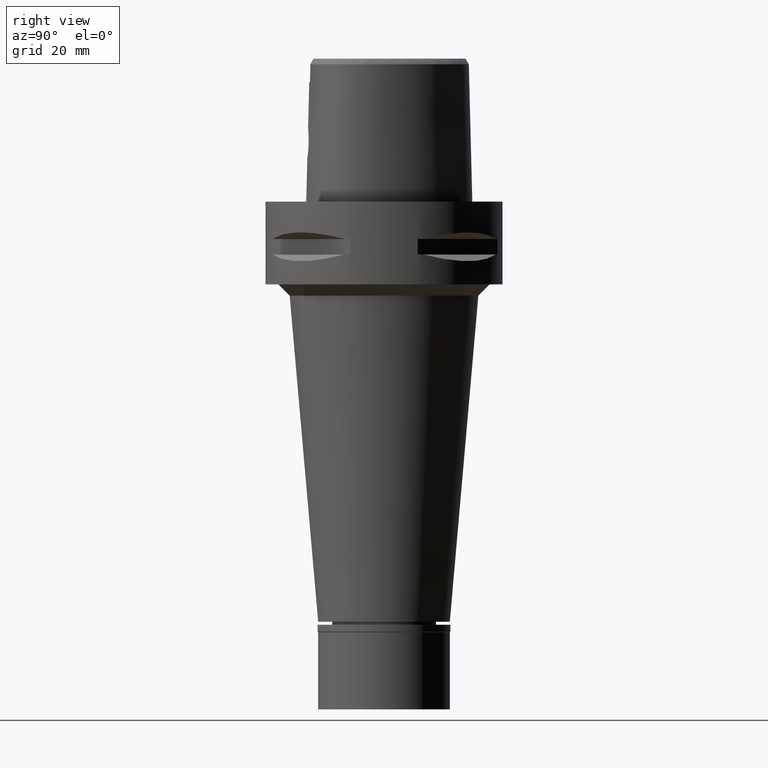
[diagram: clean part render]
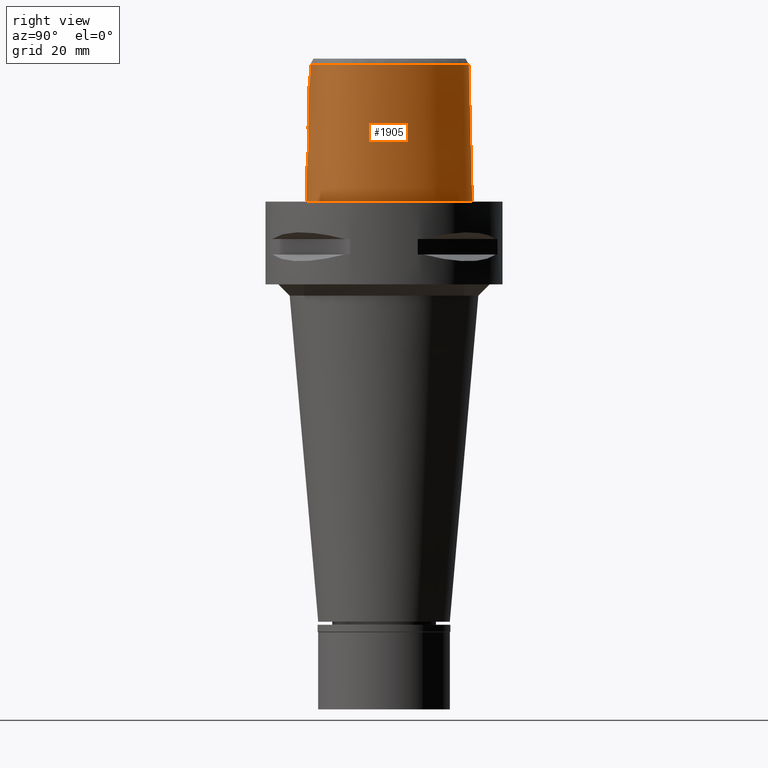
[diagram: same view with one face highlighted and labeled with its STEP entity id]
A machine part, right view. The second image highlights one B-rep face of the part: STEP entity #1905.
In plain terms, the highlighted face is a freeform B-spline surface patch.
Its self-contained STEP definition (entity closure, byte-faithful):
#5 = CARTESIAN_POINT ( 'NONE',  ( 3.664274183421038167, -20.05181531545087736, 17.23726368440960854 ) ) ;
#7 = VERTEX_POINT ( 'NONE', #3811 ) ;
#26 = CARTESIAN_POINT ( 'NONE',  ( 1.537967824490865887, -20.34761404973959031, 11.75337532982797484 ) ) ;
#48 = CARTESIAN_POINT ( 'NONE',  ( 2.880386059683543110, -20.09771851976560342, 18.34709984349684220 ) ) ;
#76 = CARTESIAN_POINT ( 'NONE',  ( 3.714384130523716188, -20.13065104887486712, 13.88538127571099956 ) ) ;
#80 = CARTESIAN_POINT ( 'NONE',  ( 19.55745538000543959, -11.29150212657624053, 36.52186680739946212 ) ) ;
#108 = CARTESIAN_POINT ( 'NONE',  ( 4.757642236485181364, 21.67478320247374057, 36.52186680739946212 ) ) ;
#119 = B_SPLINE_CURVE_WITH_KNOTS ( 'NONE', 3,
 ( #2642, #2214, #3771, #260, #1827, #3382, #4948, #1449, #4175, #671, #4971, #4197, #694, #2238, #1470, #3797, #2259, #282, #1849, #4588, #3818, #4998, #3055 ),
 .UNSPECIFIED., .F., .F.,
 ( 4, 1, 1, 1, 1, 1, 1, 1, 1, 1, 1, 1, 1, 1, 1, 1, 1, 1, 1, 1, 4 ),
 ( 0.0000000000000000000, 0.08333333333339000559, 0.1666666666667000196, 0.2083333333333000081, 0.2500000000000000000, 0.2916666666666999919, 0.3125000000000000000, 0.3333333333333000081, 0.3541666666666000163, 0.3749999999998999689, 0.4166666666666000163, 0.4583333333332000326, 0.4999999999998999689, 0.5833333333331000015, 0.6666666666664999852, 0.7499999999998000488, 0.8333333333329999704, 0.8749999999997000177, 0.9166666666664000651, 0.9583333333329999704, 1.000000000000000000 ),
 .UNSPECIFIED. ) ;
#155 = CARTESIAN_POINT ( 'NONE',  ( 2.032175996680010588, -20.14130468680036046, 19.00576489868234731 ) ) ;
#157 = CARTESIAN_POINT ( 'NONE',  ( 1.886855603546000015, -20.71358920056999864, -0.7304378865338000404 ) ) ;
#171 = CARTESIAN_POINT ( 'NONE',  ( 3.671249151389730514, -19.60525176641679579, 34.94790639287000289 ) ) ;
#187 = CARTESIAN_POINT ( 'NONE',  ( 1.767192251264180891, -20.15197845540239996, 19.14519926631463775 ) ) ;
#189 = CARTESIAN_POINT ( 'NONE',  ( 19.66427015045999838, -12.83600704977999918, -0.7304378865338000404 ) ) ;
#210 = CARTESIAN_POINT ( 'NONE',  ( 21.26836734744000168, -8.910752225297001061, 11.93048548004999887 ) ) ;
#235 = CARTESIAN_POINT ( 'NONE',  ( 18.58171406964000028, -14.18198046906999998, -0.7304378865338000404 ) ) ;
#260 = CARTESIAN_POINT ( 'NONE',  ( 11.23259758425134081, -18.89324223419839655, -1.976922916466011468E-06 ) ) ;
#262 = CARTESIAN_POINT ( 'NONE',  ( -0.4431573288905000241, 22.53713844898000218, 37.25233221322000077 ) ) ;
#282 = CARTESIAN_POINT ( 'NONE',  ( 10.74572894254814237, 19.17433597555162450, -1.976922916466011468E-06 ) ) ;
#284 = CARTESIAN_POINT ( 'NONE',  ( 20.76670355402999846, 4.663413655758000154, -0.7304378865338000404 ) ) ;
#309 = CARTESIAN_POINT ( 'NONE',  ( 20.46725036995000124, 4.555493622608000059, 11.93048548004999887 ) ) ;
#338 = CARTESIAN_POINT ( 'NONE',  ( -0.6834383974154000230, 22.83968675852000274, 24.59140884664000026 ) ) ;
#358 = CARTESIAN_POINT ( 'NONE',  ( 13.93560853092000151, 15.24203780198000047, 24.59140884664000026 ) ) ;
#360 = CARTESIAN_POINT ( 'NONE',  ( 3.437023659522733698, -20.17240543791111307, 13.35378256640194650 ) ) ;
#381 = EDGE_CURVE ( 'NONE', #4204, #589, #1830, .T. ) ;
#382 = CARTESIAN_POINT ( 'NONE',  ( 2.915545606163441050, -20.09570297646316206, 18.31119129211962360 ) ) ;
#389 = EDGE_CURVE ( 'NONE', #4992, #7, #3562, .T. ) ;
#412 = CARTESIAN_POINT ( 'NONE',  ( 3.749536200692483057, -20.04778253193092752, 17.03086640831055476 ) ) ;
#435 = CARTESIAN_POINT ( 'NONE',  ( 2.396851615580802175, -20.28741283536880502, 12.23208293719615547 ) ) ;
#456 = CARTESIAN_POINT ( 'NONE',  ( 2.844541275135316738, -20.24438467540248254, 12.61708719066292339 ) ) ;
#459 = CARTESIAN_POINT ( 'NONE',  ( 17.27359236348991089, 9.972912859139706043, 36.52186680739946212 ) ) ;
#502 = ORIENTED_EDGE ( 'NONE', *, *, #771, .T. ) ;
#541 = CARTESIAN_POINT ( 'NONE',  ( 10.91263697882000017, -18.01320773329000247, 37.25233221322000077 ) ) ;
#543 = CARTESIAN_POINT ( 'NONE',  ( 20.09619608768845822, -10.23243839430395319, 36.52186680739946212 ) ) ;
#570 = CARTESIAN_POINT ( 'NONE',  ( 17.88993632214999963, -13.52674998337000112, 37.25233221322000077 ) ) ;
#589 = VERTEX_POINT ( 'NONE', #3674 ) ;
#596 = CARTESIAN_POINT ( 'NONE',  ( 0.0000000000000000000, -20.18628283968999781, 19.55000000000000071 ) ) ;
#598 = CARTESIAN_POINT ( 'NONE',  ( 19.54161151906000171, -11.28235466916000007, 37.25233221322000077 ) ) ;
#642 = CARTESIAN_POINT ( 'NONE',  ( 4.563465393014999971E-11, 23.47499999999000053, 5.514107688971999147E-14 ) ) ;
#671 = CARTESIAN_POINT ( 'NONE',  ( 20.93173256734707977, -10.60431642637643890, -1.976922916466011468E-06 ) ) ;
#673 = CARTESIAN_POINT ( 'NONE',  ( 14.42198652399999936, 15.65278600588999858, -0.7304378865338000404 ) ) ;
#694 = CARTESIAN_POINT ( 'NONE',  ( 22.24453912811934941, -4.100468749709265559, -1.976922916466011468E-06 ) ) ;
#696 = CARTESIAN_POINT ( 'NONE',  ( 0.5662264431005000764, 22.56729384960999951, 37.25233221322000077 ) ) ;
#718 = CARTESIAN_POINT ( 'NONE',  ( 21.13154853837999880, -6.714587027558000187, 37.25233221322000077 ) ) ;
#748 = CARTESIAN_POINT ( 'NONE',  ( 17.25769826228999904, 9.963736388696998958, 37.25233221322000077 ) ) ;
#764 = VERTEX_POINT ( 'NONE', #642 ) ;
#771 = EDGE_CURVE ( 'NONE', #7, #764, #119, .T. ) ;
#776 = CARTESIAN_POINT ( 'NONE',  ( 3.599362307491986712, -20.14875877779054747, 13.64217581387161182 ) ) ;
#800 = CARTESIAN_POINT ( 'NONE',  ( 4.038482248007211339, -20.06165359963147665, 15.18817722016143179 ) ) ;
#818 = CARTESIAN_POINT ( 'NONE',  ( -1.721503160415000160E-11, 22.56201468012000078, 36.52186680743999858 ) ) ;
#832 = CARTESIAN_POINT ( 'NONE',  ( 3.128678969662491482, -20.08334280844267639, 18.07279819847166280 ) ) ;
#836 = CARTESIAN_POINT ( 'NONE',  ( 7.300578979383006484, -19.07170738130497867, 36.52186680739946212 ) ) ;
#855 = CARTESIAN_POINT ( 'NONE',  ( 3.080229322184548035, -20.08617626112495103, 18.13071590546288192 ) ) ;
#883 = CARTESIAN_POINT ( 'NONE',  ( 1.527965580144895252, -20.34815231994709350, 11.74928068373195345 ) ) ;
#920 = CARTESIAN_POINT ( 'NONE',  ( 20.09084467277000030, -11.59945457949999970, 11.93048548004999887 ) ) ;
#923 = VERTEX_POINT ( 'NONE', #1317 ) ;
#944 = CARTESIAN_POINT ( 'NONE',  ( 1.613182323484495306, -20.15753140428485324, 19.21500890072704948 ) ) ;
#948 = CARTESIAN_POINT ( 'NONE',  ( 14.36818021548999980, -16.67825709489000019, 24.59140884664000026 ) ) ;
#949 = CARTESIAN_POINT ( 'NONE',  ( 17.90324024157759197, -13.53935104436123460, 36.52186680739946212 ) ) ;
#970 = CARTESIAN_POINT ( 'NONE',  ( -0.4439347080013999469, -19.74161806026999955, 37.25233221322000077 ) ) ;
#998 = CARTESIAN_POINT ( 'NONE',  ( 20.65879041454000031, -10.48283616414000008, 11.93048548004999887 ) ) ;
#1022 = CARTESIAN_POINT ( 'NONE',  ( 6.175998540592999575, -19.37631760591000329, 37.25233221322000077 ) ) ;
#1054 = VERTEX_POINT ( 'NONE', #2039 ) ;
#1073 = CARTESIAN_POINT ( 'NONE',  ( 18.08416038767999723, 10.44089487473999966, -0.7304378865338000404 ) ) ;
#1091 = ORIENTED_EDGE ( 'NONE', *, *, #3209, .T. ) ;
#1100 = CARTESIAN_POINT ( 'NONE',  ( 4.868968358641000194, 21.95285521871999990, 24.59140884664000026 ) ) ;
#1121 = CARTESIAN_POINT ( 'NONE',  ( 5.105252918036000231, 22.54305024721999828, -0.7304378865338000404 ) ) ;
#1143 = CARTESIAN_POINT ( 'NONE',  ( 10.34823227006000046, 18.70095486269000062, 24.59140884664000026 ) ) ;
#1175 = CARTESIAN_POINT ( 'NONE',  ( 3.787426346251056231, -20.04607170149531115, 16.93525315950302712 ) ) ;
#1178 = CARTESIAN_POINT ( 'NONE',  ( 3.637738219117000238, -19.56971420299000286, 36.52185956443999970 ) ) ;
#1179 = CARTESIAN_POINT ( 'NONE',  ( 6.820926584186569121E-09, -19.98212988583463812, 27.71666688228196307 ) ) ;
#1197 = CARTESIAN_POINT ( 'NONE',  ( 2.714817435291130288, -20.25772213911184849, 12.49437854280306937 ) ) ;
#1216 = CARTESIAN_POINT ( 'NONE',  ( 4.049643110176806005, -20.05399160878187814, 15.43795828973407325 ) ) ;
#1222 = CARTESIAN_POINT ( 'NONE',  ( -1.721503160415000160E-11, 22.56201468012000078, 36.52186680743999858 ) ) ;
#1247 = CARTESIAN_POINT ( 'NONE',  ( 2.282207029747092886, -20.29700151028867694, 12.15162930637129612 ) ) ;
#1270 = CARTESIAN_POINT ( 'NONE',  ( 3.644654988697317854, -20.14185568960485995, 13.73169098995836279 ) ) ;
#1273 = CARTESIAN_POINT ( 'NONE',  ( 20.67704204633964693, -8.734985285293671353, 36.52186680739946212 ) ) ;
#1295 = CARTESIAN_POINT ( 'NONE',  ( 0.4948470747598994190, -20.18628283969000492, 19.54999999999999716 ) ) ;
#1297 = CARTESIAN_POINT ( 'NONE',  ( 11.23887130429999992, -18.91049776502999791, -0.7304378865338000404 ) ) ;
#1317 = CARTESIAN_POINT ( 'NONE',  ( -1.721503160415000160E-11, 22.56201468012000078, 36.52186680743999858 ) ) ;
#1351 = CARTESIAN_POINT ( 'NONE',  ( 2.673904828756407337, -20.10928166633797076, 18.54472627324917156 ) ) ;
#1355 = CARTESIAN_POINT ( 'NONE',  ( 14.52531259462999991, -16.95413741484999903, 11.93048548004999887 ) ) ;
#1376 = CARTESIAN_POINT ( 'NONE',  ( 16.97022731430999798, -15.69280483523000136, -0.7304378865338000404 ) ) ;
#1403 = CARTESIAN_POINT ( 'NONE',  ( 1.675120599128862686, -20.15532933629845758, 19.18749499249262769 ) ) ;
#1405 = CARTESIAN_POINT ( 'NONE',  ( 1.870063857836999910, -20.39691443297000006, 11.93048548004999887 ) ) ;
#1432 = CARTESIAN_POINT ( 'NONE',  ( 21.36961485664999927, -0.3886498175236000052, 24.59140884664000026 ) ) ;
#1444 = ORIENTED_EDGE ( 'NONE', *, *, #389, .T. ) ;
#1449 = CARTESIAN_POINT ( 'NONE',  ( 19.64947369868598770, -12.82525393535364522, -1.976922916466011468E-06 ) ) ;
#1470 = CARTESIAN_POINT ( 'NONE',  ( 20.74942745555231483, 4.657187516850373576, -1.976922916466011468E-06 ) ) ;
#1474 = CARTESIAN_POINT ( 'NONE',  ( 4.987110638338000612, 22.24795273297000264, 11.93048548004999887 ) ) ;
#1518 = CARTESIAN_POINT ( 'NONE',  ( 17.53318563741999725, 10.12278921737999937, 24.59140884664000026 ) ) ;
#1547 = CARTESIAN_POINT ( 'NONE',  ( 3.289399613304852643, -20.19244639184435641, 13.13636645579001083 ) ) ;
#1576 = CARTESIAN_POINT ( 'NONE',  ( 1.488028627206210652, -20.35026873354180665, 11.73319909950379092 ) ) ;
#1596 = CARTESIAN_POINT ( 'NONE',  ( 2.853007646188750357, -20.24348516854156799, 12.62547111175751979 ) ) ;
#1599 = CARTESIAN_POINT ( 'NONE',  ( 10.15538781006992153, 18.47129526702672919, 36.52186680739946212 ) ) ;
#1613 = CARTESIAN_POINT ( 'NONE',  ( 3.003234361618615011, -20.09064592609322020, 18.21745801850156354 ) ) ;
#1642 = CARTESIAN_POINT ( 'NONE',  ( 3.860403433736958601, -20.04330035600994009, 16.72651338064794047 ) ) ;
#1657 = EDGE_LOOP ( 'NONE', ( #3651, #1091, #4785, #3272, #2973, #3933, #1444, #502 ) ) ;
#1685 = VERTEX_POINT ( 'NONE', #1178 ) ;
#1698 = CARTESIAN_POINT ( 'NONE',  ( 18.90964962507920077, -12.28759713487546001, 36.52186680739946212 ) ) ;
#1752 = FACE_OUTER_BOUND ( 'NONE', #1657, .T. ) ;
#1773 = CARTESIAN_POINT ( 'NONE',  ( -9.433993878921999819E-13, -20.38876923348000147, 11.44999999999999929 ) ) ;
#1776 = CARTESIAN_POINT ( 'NONE',  ( 20.96392229726999901, -8.820258253928001224, 24.59140884664000026 ) ) ;
#1807 = CARTESIAN_POINT ( 'NONE',  ( -0.4520500660241000279, -20.37458439433999757, 11.93048548004999887 ) ) ;
#1827 = CARTESIAN_POINT ( 'NONE',  ( 14.67337966873001776, -17.21410160557213942, -1.976922916466011468E-06 ) ) ;
#1829 = CARTESIAN_POINT ( 'NONE',  ( 19.86834400177000148, 4.339653556306999782, 37.25233221322000077 ) ) ;
#1830 = B_SPLINE_CURVE_WITH_KNOTS ( 'NONE', 3,
 ( #2444, #3595, #2853, #2476 ),
 .UNSPECIFIED., .F., .F.,
 ( 4, 4 ),
 ( 0.0000000000000000000, 1.000000000000000000 ),
 .UNSPECIFIED. ) ;
#1849 = CARTESIAN_POINT ( 'NONE',  ( 7.571159459389420476, 21.31457035528369559, -1.976922916466011468E-06 ) ) ;
#1851 = CARTESIAN_POINT ( 'NONE',  ( 13.69241953438999992, 15.03666370002999919, 37.25233221322000077 ) ) ;
#1905 = ADVANCED_FACE ( 'NONE', ( #1752 ), #4348, .T. ) ;
#1931 = CARTESIAN_POINT ( 'NONE',  ( 3.686910441657936133, -20.13511169296126013, 13.82359477180941276 ) ) ;
#1955 = CARTESIAN_POINT ( 'NONE',  ( 1.946611601997928709, -20.32311006286644428, 11.93862046598771265 ) ) ;
#1979 = CARTESIAN_POINT ( 'NONE',  ( 3.346444325181144208, -20.07049246070038606, 17.78503332968190520 ) ) ;
#2001 = CARTESIAN_POINT ( 'NONE',  ( 2.894506219204310948, -20.09690955887031549, 18.33274339089276594 ) ) ;
#2005 = CARTESIAN_POINT ( 'NONE',  ( 4.467522181836123707, -19.48130276147307072, 36.52186680739946212 ) ) ;
#2008 = CARTESIAN_POINT ( 'NONE',  ( -9.433993878921999819E-13, -20.38876923348000147, 11.44999999999999929 ) ) ;
#2023 = CARTESIAN_POINT ( 'NONE',  ( 2.808608589973694336, -20.24816661311869481, 12.58196638594458072 ) ) ;
#2028 = CARTESIAN_POINT ( 'NONE',  ( 0.7901461619514602575, 22.56201467849343345, 36.52186680739946212 ) ) ;
#2039 = CARTESIAN_POINT ( 'NONE',  ( 0.0000000000000000000, -20.18628283968999781, 19.55000000000000071 ) ) ;
#2061 = B_SPLINE_CURVE_WITH_KNOTS ( 'NONE', 3,
 ( #2668, #2292, #2697, #3411, #4374, #2816, #2405, #4764, #1576, #3133, #883, #26, #3532, #1955, #1247, #435, #4671, #4692, #1197, #2741, #2023, #4299, #456, #1596, #3175, #4280, #3967, #3585, #1547, #3152, #360, #4740, #776, #1270, #1931, #76, #2766, #3509, #3483, #2361, #3874, #800, #4715, #5048, #1216, #3923, #2385, #3107, #3553, #2722, #1642, #2790, #1175, #2336, #3204, #412, #3897, #5, #4352, #1979, #4328, #832, #855, #1613, #3948, #382, #2001, #48, #4896, #2842, #1351, #2110, #2431, #2138, #2924, #4404, #155, #3664, #187, #1403, #944, #2902, #2954, #1295, #596 ),
 .UNSPECIFIED., .F., .F.,
 ( 4, 2, 2, 1, 1, 1, 2, 2, 2, 2, 2, 1, 1, 2, 2, 2, 2, 2, 2, 1, 2, 2, 2, 2, 1, 2, 2, 2, 2, 1, 1, 1, 2, 2, 2, 2, 2, 1, 1, 2, 2, 2, 2, 2, 2, 1, 2, 2, 4 ),
 ( 0.0000000000000000000, 0.06250000000000036082, 0.09375000000000059674, 0.1093750000000007216, 0.1171875000000007216, 0.1210937500000006800, 0.1230468750000005967, 0.1250000000000004996, 0.1874999999999977796, 0.2187499999999965028, 0.2343749999999958644, 0.2421874999999956701, 0.2460937499999956146, 0.2480468749999956424, 0.2499999999999956424, 0.2812500000000002776, 0.2968750000000027756, 0.3125000000000052736, 0.3437500000000101585, 0.3593750000000124345, 0.3671875000000135447, 0.3750000000000146549, 0.4375000000000242584, 0.4687500000000290323, 0.4843750000000315858, 0.4921875000000329181, 0.5000000000000341949, 0.5625000000000416334, 0.5937500000000454081, 0.6093750000000477396, 0.6171875000000488498, 0.6210937500000494049, 0.6230468750000492939, 0.6250000000000492939, 0.6875000000000419664, 0.7187500000000378586, 0.7343750000000356382, 0.7421875000000348610, 0.7460937500000344169, 0.7480468750000344169, 0.7500000000000344169, 0.7812500000000295319, 0.7968750000000273115, 0.8125000000000252021, 0.8437500000000208722, 0.8593750000000188738, 0.8671875000000178746, 0.8750000000000169864, 1.000000000000000000 ),
 .UNSPECIFIED. ) ;
#2063 = CARTESIAN_POINT ( 'NONE',  ( 2.376843874103304000, 22.39422497744969220, 36.52186680739946212 ) ) ;
#2088 = CARTESIAN_POINT ( 'NONE',  ( 11.13012652914000000, -18.61140108777999913, 11.93048548004999887 ) ) ;
#2110 = CARTESIAN_POINT ( 'NONE',  ( 2.520050460812478299, -20.11738995382086514, 18.67115940202065261 ) ) ;
#2112 = CARTESIAN_POINT ( 'NONE',  ( -0.4479923870126999996, -20.05810122730999723, 24.59140884664000026 ) ) ;
#2113 = CARTESIAN_POINT ( 'NONE',  ( 21.32871516739944795, -4.105831245033869870, 36.52186680739946212 ) ) ;
#2124 = CARTESIAN_POINT ( 'NONE',  ( 3.704239288984441103, -19.64128042389065598, 33.37395322129999897 ) ) ;
#2138 = CARTESIAN_POINT ( 'NONE',  ( 2.361140904826402043, -20.12552479265203331, 18.79118822093476027 ) ) ;
#2142 = CARTESIAN_POINT ( 'NONE',  ( 19.40779762556999799, -12.64961922859999888, 11.93048548004999887 ) ) ;
#2168 = CARTESIAN_POINT ( 'NONE',  ( 20.36546124962000093, -11.75800453467000040, -0.7304378865338000404 ) ) ;
#2190 = CARTESIAN_POINT ( 'NONE',  ( -0.4561077450353999696, -20.69106756138000236, -0.7304378865338000404 ) ) ;
#2214 = CARTESIAN_POINT ( 'NONE',  ( 2.113823676004852103, -20.67500004941687664, -1.976922916466011044E-06 ) ) ;
#2215 = CARTESIAN_POINT ( 'NONE',  ( 22.26285557057000375, -4.100361500018000704, -0.7304378865338000404 ) ) ;
#2238 = CARTESIAN_POINT ( 'NONE',  ( 21.97832652680038024, -0.2810937413534981832, -1.976922916466011468E-06 ) ) ;
#2240 = CARTESIAN_POINT ( 'NONE',  ( 21.99640702106999868, -0.2778990153211000624, -0.7304378865338000404 ) ) ;
#2259 = CARTESIAN_POINT ( 'NONE',  ( 14.40795642755664652, 15.64093753207556503, -1.976922916466011468E-06 ) ) ;
#2261 = CARTESIAN_POINT ( 'NONE',  ( -0.4685451933755999665, 23.16976066168000159, 11.93048548004999887 ) ) ;
#2289 = CARTESIAN_POINT ( 'NONE',  ( 2.373090252804999967, 22.37624316100999877, 37.25233221322000077 ) ) ;
#2292 = CARTESIAN_POINT ( 'NONE',  ( 0.2519697368790916325, -20.38876923348000503, 11.44999999999999751 ) ) ;
#2314 = CARTESIAN_POINT ( 'NONE',  ( 21.44619279099999787, -6.759806530445999329, 24.59140884664000026 ) ) ;
#2336 = CARTESIAN_POINT ( 'NONE',  ( 3.765593220699258392, -20.04704214534180906, 16.99108095766955984 ) ) ;
#2340 = CARTESIAN_POINT ( 'NONE',  ( 6.840904005482245240E-09, -20.08420636276312976, 23.63333344114113288 ) ) ;
#2352 = EDGE_CURVE ( 'NONE', #923, #764, #2751, .T. ) ;
#2361 = CARTESIAN_POINT ( 'NONE',  ( 4.002664568992802430, -20.07397280446608789, 14.86850854358316631 ) ) ;
#2385 = CARTESIAN_POINT ( 'NONE',  ( 4.050037399383525916, -20.04599349312465861, 15.75361975467016684 ) ) ;
#2405 = CARTESIAN_POINT ( 'NONE',  ( 1.319600680390656811, -20.35863312411228421, 11.66994494017201411 ) ) ;
#2431 = CARTESIAN_POINT ( 'NONE',  ( 2.467729343594165847, -20.12009802658482016, 18.71204267792763787 ) ) ;
#2444 = CARTESIAN_POINT ( 'NONE',  ( 3.736696120837999402, -19.67778323291999953, 31.80000004972999861 ) ) ;
#2447 = DIRECTION ( 'NONE',  ( 1.720340780425959448E-12, 0.02499051290962944413, -0.9996876883629776112 ) ) ;
#2471 = CARTESIAN_POINT ( 'NONE',  ( 6.288476565274999430, -20.00290563849999970, 11.93048548004999887 ) ) ;
#2476 = CARTESIAN_POINT ( 'NONE',  ( 2.041042029990999821E-08, -19.88004246002000031, 31.80000004972000127 ) ) ;
#2496 = CARTESIAN_POINT ( 'NONE',  ( -0.6718836805647999677, -20.05378834592999837, 24.59140884664000026 ) ) ;
#2506 = CARTESIAN_POINT ( 'NONE',  ( 3.736696120837999402, -19.67778323291999953, 31.80000004972999861 ) ) ;
#2520 = CARTESIAN_POINT ( 'NONE',  ( 18.35112148713999858, -13.96357030717000036, 11.93048548004999887 ) ) ;
#2550 = CARTESIAN_POINT ( 'NONE',  ( 20.36913756569000000, -10.35391835619999945, 24.59140884664000026 ) ) ;
#2594 = CARTESIAN_POINT ( 'NONE',  ( 10.14358053433999984, 18.45723391327999963, 37.25233221322000077 ) ) ;
#2620 = CARTESIAN_POINT ( 'NONE',  ( 21.62788384706000144, -4.104079499376999784, 24.59140884664000026 ) ) ;
#2642 = CARTESIAN_POINT ( 'NONE',  ( -7.554098293773000222E-12, -20.67499999999999716, 5.802765675373999636E-14 ) ) ;
#2644 = CARTESIAN_POINT ( 'NONE',  ( 2.568271206842000165, 23.31126238899999947, -0.7304378865338000404 ) ) ;
#2668 = CARTESIAN_POINT ( 'NONE',  ( -9.433993878921999819E-13, -20.38876923348000147, 11.44999999999999929 ) ) ;
#2693 = CARTESIAN_POINT ( 'NONE',  ( 2.503210888828999892, 22.99958931300000131, 11.93048548004999887 ) ) ;
#2697 = CARTESIAN_POINT ( 'NONE',  ( 0.5100579658811899009, -20.38531276215466903, 11.47358267918783881 ) ) ;
#2722 = CARTESIAN_POINT ( 'NONE',  ( 3.918456791372860515, -20.04170609324360086, 16.53266420031398098 ) ) ;
#2741 = CARTESIAN_POINT ( 'NONE',  ( 2.758179676623911725, -20.25337897196574843, 12.53390918841327206 ) ) ;
#2751 = LINE ( 'NONE', #818, #3012 ) ;
#2766 = CARTESIAN_POINT ( 'NONE',  ( 3.727121516744355656, -20.12854809717472904, 13.91496385434327010 ) ) ;
#2776 = DIRECTION ( 'NONE',  ( -5.771733019804828765E-13, -0.02499051295389925070, -0.9996876883618708298 ) ) ;
#2790 = CARTESIAN_POINT ( 'NONE',  ( 3.828814954409509586, -20.04436409866676527, 16.82317999465562863 ) ) ;
#2794 = CARTESIAN_POINT ( 'NONE',  ( 13.70645019739128045, 15.04851265230483115, 36.52186680739946212 ) ) ;
#2816 = CARTESIAN_POINT ( 'NONE',  ( 1.222756221967583823, -20.36284569854002768, 11.63840396453707449 ) ) ;
#2842 = CARTESIAN_POINT ( 'NONE',  ( 2.772326413959757208, -20.10389738242800917, 18.45539022241212379 ) ) ;
#2846 = CARTESIAN_POINT ( 'NONE',  ( 14.21104783635999880, -16.40237677493000135, 37.25233221322000077 ) ) ;
#2853 = CARTESIAN_POINT ( 'NONE',  ( 1.251533272182344447, -19.88005341395341219, 31.80000012137772103 ) ) ;
#2902 = CARTESIAN_POINT ( 'NONE',  ( 1.583085234474147729, -20.15857747892414764, 19.22794739783282481 ) ) ;
#2904 = CARTESIAN_POINT ( 'NONE',  ( 16.38077671881999819, -14.94316434067000188, 37.25233221322000077 ) ) ;
#2924 = CARTESIAN_POINT ( 'NONE',  ( 2.305334229535943802, -20.12831948498825341, 18.83048013503533014 ) ) ;
#2926 = CARTESIAN_POINT ( 'NONE',  ( 20.94844326340000151, -10.61175397208999982, -0.7304378865338000404 ) ) ;
#2954 = CARTESIAN_POINT ( 'NONE',  ( 1.027682876504142584, -20.17741712424493272, 19.45809765211923548 ) ) ;
#2957 = CARTESIAN_POINT ( 'NONE',  ( 18.12052890463999688, -13.74516014527000074, 24.59140884664000026 ) ) ;
#2973 = ORIENTED_EDGE ( 'NONE', *, *, #3059, .T. ) ;
#2981 = CARTESIAN_POINT ( 'NONE',  ( 0.6155340743092999611, 23.51883498272999873, -0.7304378865338000404 ) ) ;
#3012 = VECTOR ( 'NONE', #2447, 999.9999999999998863 ) ;
#3032 = CARTESIAN_POINT ( 'NONE',  ( 4.750826078944000663, 21.65775770447000070, 37.25233221322000077 ) ) ;
#3055 = CARTESIAN_POINT ( 'NONE',  ( 4.563465393014999971E-11, 23.47499999999000053, 5.514107688971999147E-14 ) ) ;
#3059 = EDGE_CURVE ( 'NONE', #589, #1054, #3510, .T. ) ;
#3063 = CARTESIAN_POINT ( 'NONE',  ( 2.041042029990999821E-08, -19.88004246002000031, 31.80000004972000127 ) ) ;
#3076 = CARTESIAN_POINT ( 'NONE',  ( -0.6642815135812000227, 22.52377614171999909, 37.25233221322000077 ) ) ;
#3107 = CARTESIAN_POINT ( 'NONE',  ( 4.026067555606275938, -20.04243146964168787, 16.01312629722239578 ) ) ;
#3133 = CARTESIAN_POINT ( 'NONE',  ( 1.511996643077990310, -20.34900293593731746, 11.74281483622983657 ) ) ;
#3152 = CARTESIAN_POINT ( 'NONE',  ( 3.328551379740412930, -20.18727222456296744, 13.19186960083967186 ) ) ;
#3175 = CARTESIAN_POINT ( 'NONE',  ( 2.953000302320876624, -20.23281254683992003, 12.72512295699170082 ) ) ;
#3204 = CARTESIAN_POINT ( 'NONE',  ( 3.755991642141464304, -20.04748304465435993, 17.01495889863737432 ) ) ;
#3209 = EDGE_CURVE ( 'NONE', #923, #1685, #3776, .T. ) ;
#3261 = CARTESIAN_POINT ( 'NONE',  ( -0.6840631437209999666, -20.68668116908000343, -0.7304378865338000404 ) ) ;
#3262 = CARTESIAN_POINT ( 'NONE',  ( 19.88562079788567161, 4.345879946636468816, 36.52186680739946212 ) ) ;
#3272 = ORIENTED_EDGE ( 'NONE', *, *, #381, .T. ) ;
#3293 = CARTESIAN_POINT ( 'NONE',  ( 6.232237552934000391, -19.68961162220999839, 24.59140884664000026 ) ) ;
#3302 = CARTESIAN_POINT ( 'NONE',  ( 3.637738219117000238, -19.56971420299000286, 36.52185956443999970 ) ) ;
#3315 = CARTESIAN_POINT ( 'NONE',  ( 16.77374378247999687, -15.44292467038000005, 11.93048548004999887 ) ) ;
#3364 = CARTESIAN_POINT ( 'NONE',  ( 7.099337604603999985, 20.50831361345999682, 37.25233221322000077 ) ) ;
#3382 = CARTESIAN_POINT ( 'NONE',  ( 16.95889175661484316, -15.67838871089047359, -1.976922916466011468E-06 ) ) ;
#3408 = CARTESIAN_POINT ( 'NONE',  ( 7.580410842776999836, 21.33037926737999967, -0.7304378865338000404 ) ) ;
#3411 = CARTESIAN_POINT ( 'NONE',  ( 0.8988479711760153368, -20.37494334817867525, 11.54879813003858935 ) ) ;
#3435 = CARTESIAN_POINT ( 'NONE',  ( 20.16779718585999959, 4.447573589458000853, 24.59140884664000026 ) ) ;
#3458 = CARTESIAN_POINT ( 'NONE',  ( 21.94536970882000304, -4.102220499698000289, 11.93048548004999887 ) ) ;
#3465 = CARTESIAN_POINT ( 'NONE',  ( 0.0000000000000000000, -20.18628283968999781, 19.55000000000000071 ) ) ;
#3483 = CARTESIAN_POINT ( 'NONE',  ( 3.927790621348953515, -20.09243382074338413, 14.47756111163828052 ) ) ;
#3509 = CARTESIAN_POINT ( 'NONE',  ( 3.850246712570787100, -20.10780614032470837, 14.21172176769479734 ) ) ;
#3510 = B_SPLINE_CURVE_WITH_KNOTS ( 'NONE', 3,
 ( #3063, #1179, #2340, #3465 ),
 .UNSPECIFIED., .F., .F.,
 ( 4, 4 ),
 ( 0.0000000000000000000, 1.000000000000000000 ),
 .UNSPECIFIED. ) ;
#3532 = CARTESIAN_POINT ( 'NONE',  ( 1.734379789056268439, -20.33697246834248062, 11.83436638252621975 ) ) ;
#3553 = CARTESIAN_POINT ( 'NONE',  ( 3.950323019400082458, -20.04135421479578838, 16.40274729697709688 ) ) ;
#3557 = CARTESIAN_POINT ( 'NONE',  ( 7.108589361577737797, 20.52412316394631020, 36.52186680739946212 ) ) ;
#3562 = LINE ( 'NONE', #2008, #4730 ) ;
#3585 = CARTESIAN_POINT ( 'NONE',  ( 3.210108431848968102, -20.20255916619498038, 13.02975361490054063 ) ) ;
#3589 = CARTESIAN_POINT ( 'NONE',  ( 21.14970177531420603, -6.717195943319649309, 36.52186680739946212 ) ) ;
#3595 = CARTESIAN_POINT ( 'NONE',  ( 2.503154195451701813, -19.81241979350818383, 31.80000012137772103 ) ) ;
#3651 = ORIENTED_EDGE ( 'NONE', *, *, #2352, .F. ) ;
#3664 = CARTESIAN_POINT ( 'NONE',  ( 1.856701250911930279, -20.14848423775700681, 19.09993988372597684 ) ) ;
#3669 = CARTESIAN_POINT ( 'NONE',  ( -0.6657939489866999683, -19.73734193434999895, 37.25233221322000077 ) ) ;
#3674 = CARTESIAN_POINT ( 'NONE',  ( 2.041042029990999821E-08, -19.88004246002000031, 31.80000004972000127 ) ) ;
#3698 = CARTESIAN_POINT ( 'NONE',  ( 19.15132510069000205, -12.46323140740999946, 24.59140884664000026 ) ) ;
#3720 = CARTESIAN_POINT ( 'NONE',  ( 21.57281239761000080, -9.001246196664999033, -0.7304378865338000404 ) ) ;
#3743 = CARTESIAN_POINT ( 'NONE',  ( 1.853272112128000026, -20.08023966536999794, 24.59140884664000026 ) ) ;
#3771 = CARTESIAN_POINT ( 'NONE',  ( 6.341471027992995779, -20.29812504892293390, -1.976922916466011891E-06 ) ) ;
#3775 = CARTESIAN_POINT ( 'NONE',  ( 7.259695350662000557, 20.78233549810000014, 24.59140884664000026 ) ) ;
#3776 = B_SPLINE_CURVE_WITH_KNOTS ( 'NONE', 3,
 ( #1222, #2028, #2063, #108, #3557, #1599, #2794, #459, #3262, #4051, #2113, #3589, #1273, #543, #80, #1698, #949, #4355, #4436, #4332, #836, #2005, #4794 ),
 .UNSPECIFIED., .F., .F.,
 ( 4, 1, 1, 1, 1, 1, 1, 1, 1, 1, 1, 1, 1, 1, 1, 1, 1, 1, 1, 1, 4 ),
 ( 0.0000000000000000000, 0.04382683003322106891, 0.08765366006602126614, 0.1314804900989268166, 0.1753073201318323393, 0.2629609801974328587, 0.3506146402631387105, 0.4382683003289496448, 0.5259219603945503030, 0.5697487904274557424, 0.6135756204602560437, 0.6574024504931615942, 0.6793158655095616894, 0.7012292805259618955, 0.7231426955423619907, 0.7450561105587620858, 0.7888829405916676363, 0.8327097706245731867, 0.8765366006573733770, 0.9641902607230897759, 1.000000000000000000 ),
 .UNSPECIFIED. ) ;
#3797 = CARTESIAN_POINT ( 'NONE',  ( 18.06826692828425607, 10.43171877484354937, -1.976922916466011468E-06 ) ) ;
#3799 = CARTESIAN_POINT ( 'NONE',  ( 17.80867301254999902, 10.28184204605999952, 11.93048548004999887 ) ) ;
#3811 = CARTESIAN_POINT ( 'NONE',  ( -7.554098293773000222E-12, -20.67499999999999716, 5.802765675373999636E-14 ) ) ;
#3818 = CARTESIAN_POINT ( 'NONE',  ( 2.564517737115391327, 23.29328129866576091, -1.976922916466011468E-06 ) ) ;
#3820 = CARTESIAN_POINT ( 'NONE',  ( -0.7217521650838999436, 23.47150799213000383, -0.7304378865338000404 ) ) ;
#3850 = CARTESIAN_POINT ( 'NONE',  ( 0.5826623201701000010, 22.88447422732000192, 24.59140884664000026 ) ) ;
#3872 = CARTESIAN_POINT ( 'NONE',  ( 21.05621877444000134, -0.4440252186248000443, 37.25233221322000077 ) ) ;
#3874 = CARTESIAN_POINT ( 'NONE',  ( 4.020738798819311732, -20.06858537622277439, 14.99755720161237527 ) ) ;
#3890 = B_SPLINE_CURVE_WITH_KNOTS ( 'NONE', 3,
 ( #2506, #2124, #171, #3302 ),
 .UNSPECIFIED., .F., .F.,
 ( 4, 4 ),
 ( 0.0000000000000000000, 1.000000000000000000 ),
 .UNSPECIFIED. ) ;
#3897 = CARTESIAN_POINT ( 'NONE',  ( 3.745459306423714274, -20.04797394566475788, 17.04080371185160914 ) ) ;
#3923 = CARTESIAN_POINT ( 'NONE',  ( 4.049995275655164484, -20.05320010482691373, 15.46762644421683852 ) ) ;
#3933 = ORIENTED_EDGE ( 'NONE', *, *, #4862, .F. ) ;
#3948 = CARTESIAN_POINT ( 'NONE',  ( 2.963657114688500016, -20.09293563006355399, 18.26079471621683226 ) ) ;
#3967 = CARTESIAN_POINT ( 'NONE',  ( 3.169150985202967341, -20.20760989054315360, 12.97742286930335531 ) ) ;
#4026 = CARTESIAN_POINT ( 'NONE',  ( 6.344715577616000246, -20.31619965479000101, -0.7304378865338000404 ) ) ;
#4050 = CARTESIAN_POINT ( 'NONE',  ( 1.836480366418999921, -19.76356489777000291, 37.25233221322000077 ) ) ;
#4051 = CARTESIAN_POINT ( 'NONE',  ( 21.07429999882987204, -0.4408303635840818968, 36.52186680739946212 ) ) ;
#4108 = CARTESIAN_POINT ( 'NONE',  ( 20.07948471682999880, -10.22500054824999971, 37.25233221322000077 ) ) ;
#4129 = CARTESIAN_POINT ( 'NONE',  ( 16.57726025064999931, -15.19304450553000052, 24.59140884664000026 ) ) ;
#4149 = CARTESIAN_POINT ( 'NONE',  ( -0.7025952812497000544, 23.15559737533000018, 11.93048548004999887 ) ) ;
#4175 = CARTESIAN_POINT ( 'NONE',  ( 20.34961802845059609, -11.74885744662829623, -1.976922916466011468E-06 ) ) ;
#4178 = CARTESIAN_POINT ( 'NONE',  ( 10.55288400577999930, 18.94467581209999807, 11.93048548004999887 ) ) ;
#4197 = CARTESIAN_POINT ( 'NONE',  ( 22.05732879235335275, -6.847636725810371416, -1.976922916466011468E-06 ) ) ;
#4199 = CARTESIAN_POINT ( 'NONE',  ( 0.5990981972397000366, 23.20165460501999632, 11.93048548004999887 ) ) ;
#4204 = VERTEX_POINT ( 'NONE', #4631 ) ;
#4223 = CARTESIAN_POINT ( 'NONE',  ( 21.76083704363000138, -6.805026033335000335, 11.93048548004999887 ) ) ;
#4253 = CARTESIAN_POINT ( 'NONE',  ( 10.75753574149999814, 19.18839676150000173, -0.7304378865338000404 ) ) ;
#4280 = CARTESIAN_POINT ( 'NONE',  ( 3.042491796687598615, -20.22274507510632802, 12.82354767343123747 ) ) ;
#4299 = CARTESIAN_POINT ( 'NONE',  ( 2.830175095662165408, -20.24590160278924600, 12.60298252333854663 ) ) ;
#4328 = CARTESIAN_POINT ( 'NONE',  ( 3.265869583393927300, -20.07528142228554913, 17.89964299955888904 ) ) ;
#4332 = CARTESIAN_POINT ( 'NONE',  ( 10.91891095221184571, -18.03046396092846493, 36.52186680739946212 ) ) ;
#4348 = B_SPLINE_SURFACE_WITH_KNOTS ( 'NONE', 3, 3, ( 
 ( #3261, #4793, #2496, #3669 ),
 ( #2190, #1807, #2112, #970 ),
 ( #157, #1405, #3743, #4050 ),
 ( #4026, #2471, #3293, #1022 ),
 ( #1297, #2088, #4481, #541 ),
 ( #4824, #1355, #948, #2846 ),
 ( #1376, #3315, #4129, #2904 ),
 ( #235, #2520, #2957, #570 ),
 ( #189, #2142, #3698, #4407 ),
 ( #2168, #920, #4875, #598 ),
 ( #2926, #998, #2550, #4108 ),
 ( #3720, #210, #1776, #4900 ),
 ( #4509, #4223, #2314, #718 ),
 ( #2215, #3458, #2620, #4614 ),
 ( #2240, #4974, #1432, #3872 ),
 ( #284, #309, #3435, #1829 ),
 ( #1073, #3799, #1518, #748 ),
 ( #673, #4593, #358, #1851 ),
 ( #4253, #4178, #1143, #2594 ),
 ( #3408, #4638, #3775, #3364 ),
 ( #1121, #1474, #1100, #3032 ),
 ( #2644, #2693, #4928, #2289 ),
 ( #2981, #4199, #3850, #696 ),
 ( #4558, #2261, #5027, #262 ),
 ( #3820, #4149, #338, #3076 ) ),
 .UNSPECIFIED., .F., .F., .F.,
 ( 4, 1, 1, 1, 1, 1, 1, 1, 1, 1, 1, 1, 1, 1, 1, 1, 1, 1, 1, 1, 1, 1, 4 ),
 ( 4, 4 ),
 ( -0.008985960173574000093, 0.0000000000000000000, 0.08333333333339000559, 0.1666666666667000196, 0.2083333333333000081, 0.2500000000000000000, 0.2916666666666999919, 0.3125000000000000000, 0.3333333333333000081, 0.3541666666666000163, 0.3749999999998999689, 0.4166666666666000163, 0.4583333333332000326, 0.4999999999998999689, 0.5833333333331000015, 0.6666666666664999852, 0.7499999999998000488, 0.8333333333329999704, 0.8749999999997000177, 0.9166666666664000651, 0.9583333333329999704, 1.000000000000000000, 1.011710456763000199 ),
 ( -4.245135739460999736E-09, 1.000000216502000105 ),
 .UNSPECIFIED. ) ;
#4352 = CARTESIAN_POINT ( 'NONE',  ( 3.559803832330558304, -20.05788146350366574, 17.44950363746816180 ) ) ;
#4355 = CARTESIAN_POINT ( 'NONE',  ( 16.39211273426371562, -14.95758104715703496, 36.52186680739946212 ) ) ;
#4374 = CARTESIAN_POINT ( 'NONE',  ( 1.028701314431084368, -20.37062275902201236, 11.58049741886275541 ) ) ;
#4396 = EDGE_CURVE ( 'NONE', #4204, #1685, #3890, .T. ) ;
#4404 = CARTESIAN_POINT ( 'NONE',  ( 2.144427845716718739, -20.13626349860817299, 18.93810770242221153 ) ) ;
#4407 = CARTESIAN_POINT ( 'NONE',  ( 18.89485257579999811, -12.27684358622000005, 37.25233221322000077 ) ) ;
#4436 = CARTESIAN_POINT ( 'NONE',  ( 14.22011350746198488, -16.41829354687804354, 36.52186680739946212 ) ) ;
#4481 = CARTESIAN_POINT ( 'NONE',  ( 11.02138175398000008, -18.31230441053999769, 24.59140884664000026 ) ) ;
#4509 = CARTESIAN_POINT ( 'NONE',  ( 22.07548129626000133, -6.850245536223999565, -0.7304378865338000404 ) ) ;
#4558 = CARTESIAN_POINT ( 'NONE',  ( -0.4812391256181999810, 23.48607176803999863, -0.7304378865338000404 ) ) ;
#4588 = CARTESIAN_POINT ( 'NONE',  ( 5.098437035731360645, 22.52602543670625224, -1.976922916466011468E-06 ) ) ;
#4593 = CARTESIAN_POINT ( 'NONE',  ( 14.17879752745999866, 15.44741190392999997, 11.93048548004999887 ) ) ;
#4614 = CARTESIAN_POINT ( 'NONE',  ( 21.31039798529999985, -4.105938499055999280, 37.25233221322000077 ) ) ;
#4631 = CARTESIAN_POINT ( 'NONE',  ( 3.736696120837999402, -19.67778323291999953, 31.80000004972999861 ) ) ;
#4638 = CARTESIAN_POINT ( 'NONE',  ( 7.420053096719000152, 21.05635738273999991, 11.93048548004999887 ) ) ;
#4671 = CARTESIAN_POINT ( 'NONE',  ( 2.570081009084386192, -20.27170108689807293, 12.36908902939368460 ) ) ;
#4692 = CARTESIAN_POINT ( 'NONE',  ( 2.628027080903733825, -20.26624238139267931, 12.41747670475470855 ) ) ;
#4715 = CARTESIAN_POINT ( 'NONE',  ( 4.045013207771214425, -20.05847505277924725, 15.28275217491512272 ) ) ;
#4730 = VECTOR ( 'NONE', #2776, 1000.000000000000114 ) ;
#4740 = CARTESIAN_POINT ( 'NONE',  ( 3.504989208434506676, -20.16277707621800275, 13.46647361527119813 ) ) ;
#4764 = CARTESIAN_POINT ( 'NONE',  ( 1.432005274344609003, -20.35315137661976692, 11.71134280122727311 ) ) ;
#4785 = ORIENTED_EDGE ( 'NONE', *, *, #4396, .F. ) ;
#4793 = CARTESIAN_POINT ( 'NONE',  ( -0.6779734121428999671, -20.37023475750000046, 11.93048548004999887 ) ) ;
#4794 = CARTESIAN_POINT ( 'NONE',  ( 3.637738219117000238, -19.56971420299000286, 36.52185956443999970 ) ) ;
#4824 = CARTESIAN_POINT ( 'NONE',  ( 14.68244497375999913, -17.23001773480000409, -0.7304378865338000404 ) ) ;
#4862 = EDGE_CURVE ( 'NONE', #4992, #1054, #2061, .T. ) ;
#4875 = CARTESIAN_POINT ( 'NONE',  ( 19.81622809591999967, -11.44090462432999900, 24.59140884664000026 ) ) ;
#4896 = CARTESIAN_POINT ( 'NONE',  ( 2.871987183427143542, -20.09819914941971319, 18.35556622516883962 ) ) ;
#4900 = CARTESIAN_POINT ( 'NONE',  ( 20.65947724710000344, -8.729764282558999611, 37.25233221322000077 ) ) ;
#4928 = CARTESIAN_POINT ( 'NONE',  ( 2.438150570817000151, 22.68791623700000315, 24.59140884664000026 ) ) ;
#4948 = CARTESIAN_POINT ( 'NONE',  ( 18.56841068742441081, -14.16937991690989840, -1.976922916466011468E-06 ) ) ;
#4971 = CARTESIAN_POINT ( 'NONE',  ( 21.55524830763734911, -8.996025404754593779, -1.976922916466011468E-06 ) ) ;
#4974 = CARTESIAN_POINT ( 'NONE',  ( 21.68301093886000075, -0.3332744164222999905, 11.93048548004999887 ) ) ;
#4992 = VERTEX_POINT ( 'NONE', #1773 ) ;
#4998 = CARTESIAN_POINT ( 'NONE',  ( 0.8548392458104867586, 23.47500004942541452, -1.976922916466011468E-06 ) ) ;
#5027 = CARTESIAN_POINT ( 'NONE',  ( -0.4558512611331000386, 22.85344955533000189, 24.59140884664000026 ) ) ;
#5048 = CARTESIAN_POINT ( 'NONE',  ( 4.048221369819505533, -20.05572751809215148, 15.37605551826763239 ) ) ;